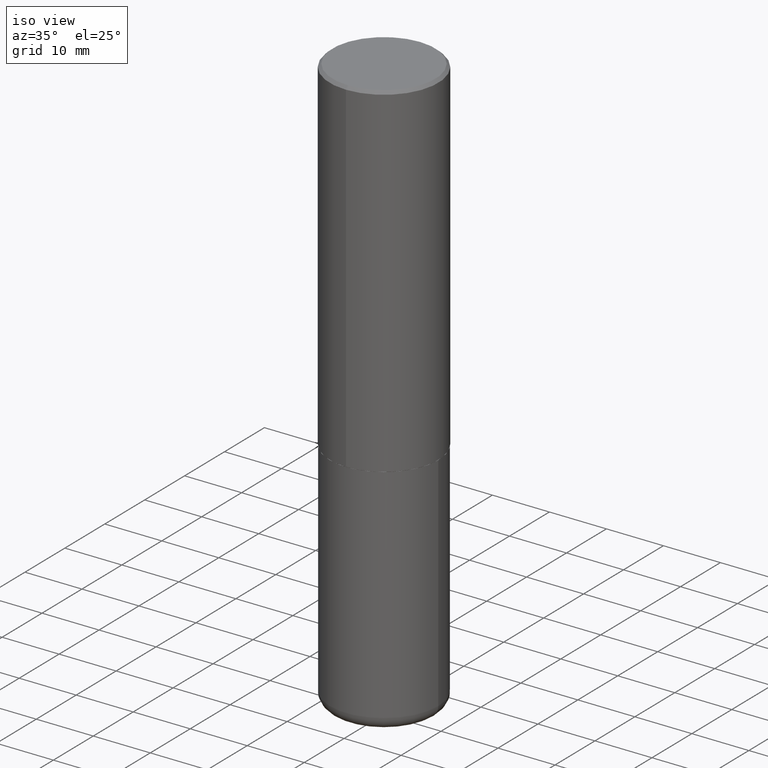
[diagram: clean part render]
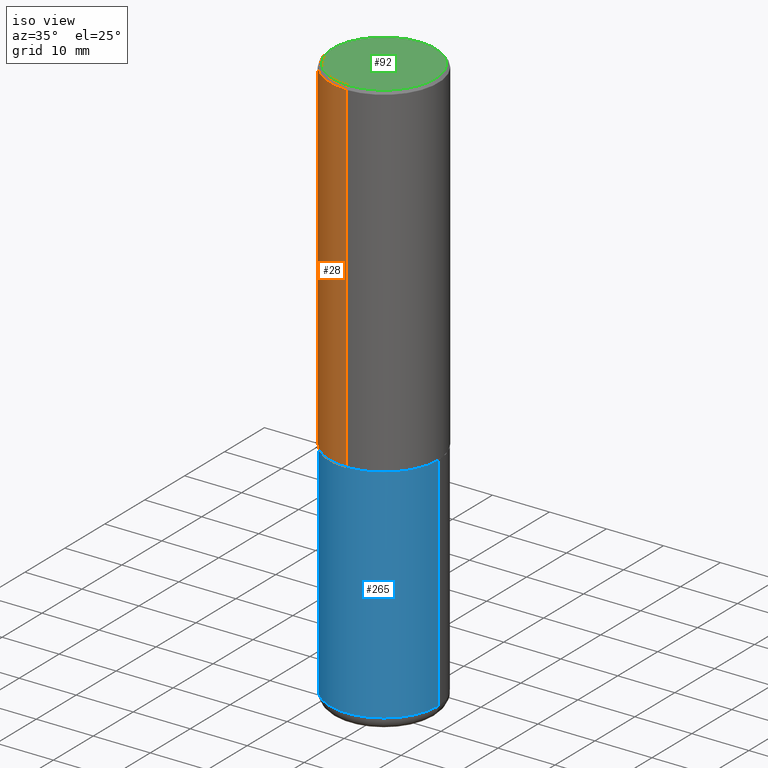
[diagram: same view with three faces highlighted in distinct colors, each labeled with its STEP entity id]
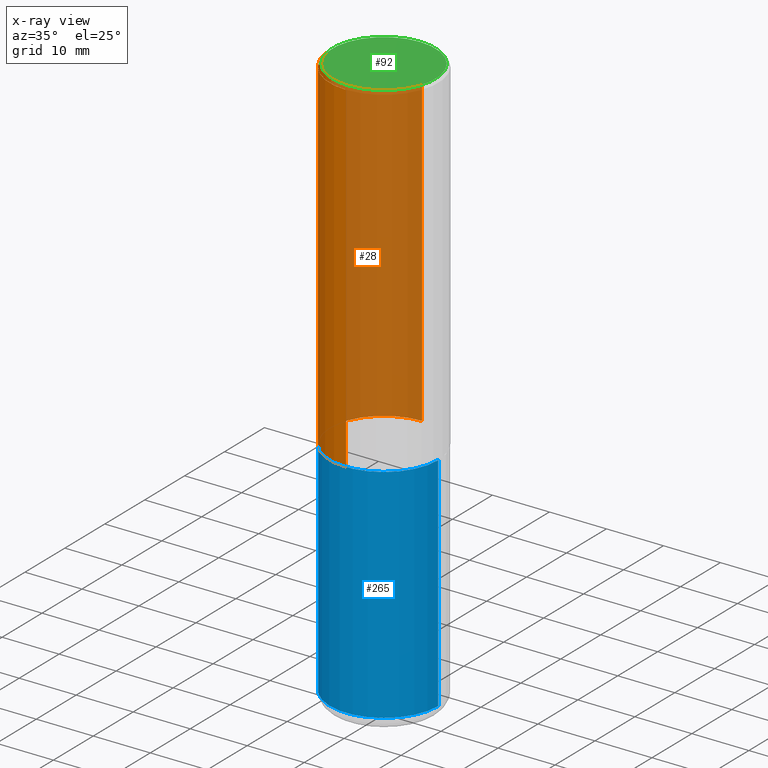
[diagram: x-ray of the same camera — body ghosted, the three highlighted faces saturated]
A machine part, iso view with three faces highlighted in distinct colors.
The next image is the same camera in x-ray (body ghosted, the three faces saturated) — at least one of them is partly hidden behind the body in this view.
Their STEP definitions:

[orange] entity #28 — the highlighted cylindrical surface (partial cylindrical patch) has radius 9.525 mm, axis along (-0, 0, 1).
#1 = CARTESIAN_POINT ( 'NONE',  ( -2.618611004132351200E-15, -0.3750000000000001665, 1.309785868171475725E-15 ) ) ;
#7 = DIRECTION ( 'NONE',  ( -6.982962677686265922E-15, -1.000000000000000000, 3.494488891895536035E-15 ) ) ;
#28 = ADVANCED_FACE ( 'NONE', ( #217 ), #349, .T. ) ;
#33 = CARTESIAN_POINT ( 'NONE',  ( 5.803419400614030161E-29, -8.291817736104219412E-15, -2.373999999999999666 ) ) ;
#37 = AXIS2_PLACEMENT_3D ( 'NONE', #33, #102, #363 ) ;
#39 = DIRECTION ( 'NONE',  ( -2.444574305229161733E-29, 3.492762315123933951E-15, 1.000000000000000000 ) ) ;
#45 = CARTESIAN_POINT ( 'NONE',  ( -2.572686749164323547E-15, -0.3750000000000001110, -0.01999999999999879652 ) ) ;
#51 = ORIENTED_EDGE ( 'NONE', *, *, #416, .F. ) ;
#74 = CARTESIAN_POINT ( 'NONE',  ( 2.664535259100406068E-15, 0.3749999999999920619, -2.374000000000001442 ) ) ;
#75 = ORIENTED_EDGE ( 'NONE', *, *, #174, .T. ) ;
#86 = ORIENTED_EDGE ( 'NONE', *, *, #132, .F. ) ;
#98 = ORIENTED_EDGE ( 'NONE', *, *, #208, .T. ) ;
#102 = DIRECTION ( 'NONE',  ( -2.444574305229161733E-29, 3.492762315123933951E-15, 1.000000000000000000 ) ) ;
#104 = CARTESIAN_POINT ( 'NONE',  ( 2.618611004132350411E-15, 0.3749999999999999445, -0.02000000000000141595 ) ) ;
#117 = CARTESIAN_POINT ( 'NONE',  ( -2.618611004132293613E-15, -0.3750000000000085487, -2.373999999999998334 ) ) ;
#131 = DIRECTION ( 'NONE',  ( -2.444574305229161733E-29, 3.492762315123933951E-15, 1.000000000000000000 ) ) ;
#132 = EDGE_CURVE ( 'NONE', #215, #385, #168, .T. ) ;
#133 = CARTESIAN_POINT ( 'NONE',  ( 4.889148610458350090E-31, -6.985524630247905373E-17, -0.02000000000000010797 ) ) ;
#150 = DIRECTION ( 'NONE',  ( -2.444574305229161733E-29, 3.492762315123933951E-15, 1.000000000000000000 ) ) ;
#166 = LINE ( 'NONE', #1, #282 ) ;
#168 = CIRCLE ( 'NONE', #365, 0.3750000000000000555 ) ;
#174 = EDGE_CURVE ( 'NONE', #279, #244, #409, .T. ) ;
#178 = CARTESIAN_POINT ( 'NONE',  ( 2.664535259100376486E-15, 0.3750000000000001665, -1.309785868171475725E-15 ) ) ;
#187 = CARTESIAN_POINT ( 'NONE',  ( 0.000000000000000000, 0.000000000000000000, 0.000000000000000000 ) ) ;
#191 = EDGE_LOOP ( 'NONE', ( #51, #75, #98, #86 ) ) ;
#207 = LINE ( 'NONE', #178, #308 ) ;
#208 = EDGE_CURVE ( 'NONE', #244, #385, #166, .T. ) ;
#215 = VERTEX_POINT ( 'NONE', #104 ) ;
#217 = FACE_OUTER_BOUND ( 'NONE', #191, .T. ) ;
#244 = VERTEX_POINT ( 'NONE', #117 ) ;
#279 = VERTEX_POINT ( 'NONE', #74 ) ;
#282 = VECTOR ( 'NONE', #131, 39.37007874015748143 ) ;
#287 = DIRECTION ( 'NONE',  ( -6.982962677686266711E-15, -1.000000000000000000, 3.492762315123933556E-15 ) ) ;
#308 = VECTOR ( 'NONE', #150, 39.37007874015748143 ) ;
#323 = DIRECTION ( 'NONE',  ( -2.444574305229161733E-29, 3.492762315123933951E-15, 1.000000000000000000 ) ) ;
#349 = CYLINDRICAL_SURFACE ( 'NONE', #364, 0.3750000000000001665 ) ;
#363 = DIRECTION ( 'NONE',  ( -6.982962677686266711E-15, -1.000000000000000000, 3.642463991552348591E-15 ) ) ;
#364 = AXIS2_PLACEMENT_3D ( 'NONE', #187, #323, #287 ) ;
#365 = AXIS2_PLACEMENT_3D ( 'NONE', #133, #39, #7 ) ;
#385 = VERTEX_POINT ( 'NONE', #45 ) ;
#409 = CIRCLE ( 'NONE', #37, 0.3750000000000002776 ) ;
#416 = EDGE_CURVE ( 'NONE', #279, #215, #207, .T. ) ;

[blue] entity #265 — the highlighted cylindrical surface (partial cylindrical patch) has radius 9.525 mm, axis along (-0, 0, 1).
#11 = DIRECTION ( 'NONE',  ( 1.000000000000000000, -6.982962677686266711E-15, 0.000000000000000000 ) ) ;
#12 = CARTESIAN_POINT ( 'NONE',  ( -0.3749999999999999445, -1.098715677577632652E-14, -3.910000000000000142 ) ) ;
#20 = DIRECTION ( 'NONE',  ( 1.000000000000000000, -6.982962677686266711E-15, 4.876176775795935793E-29 ) ) ;
#46 = EDGE_LOOP ( 'NONE', ( #161, #399, #275, #325 ) ) ;
#70 = AXIS2_PLACEMENT_3D ( 'NONE', #171, #301, #11 ) ;
#76 = EDGE_CURVE ( 'NONE', #346, #224, #360, .T. ) ;
#78 = DIRECTION ( 'NONE',  ( -2.445468806185136597E-29, 3.491481338843145583E-15, 1.000000000000000000 ) ) ;
#101 = AXIS2_PLACEMENT_3D ( 'NONE', #243, #376, #335 ) ;
#115 = CARTESIAN_POINT ( 'NONE',  ( 0.3750000000000000555, -1.091087918388482013E-14, -2.375000000000000000 ) ) ;
#127 = VERTEX_POINT ( 'NONE', #299 ) ;
#135 = CARTESIAN_POINT ( 'NONE',  ( 0.3749999999999999445, -2.618611004132349622E-15, 1.828566290923475642E-29 ) ) ;
#140 = CYLINDRICAL_SURFACE ( 'NONE', #317, 0.3749999999999999445 ) ;
#161 = ORIENTED_EDGE ( 'NONE', *, *, #76, .F. ) ;
#171 = CARTESIAN_POINT ( 'NONE',  ( 5.807988414689699417E-29, -8.292268179752470118E-15, -2.375000000000000000 ) ) ;
#213 = EDGE_CURVE ( 'NONE', #127, #377, #298, .T. ) ;
#224 = VERTEX_POINT ( 'NONE', #395 ) ;
#241 = FACE_OUTER_BOUND ( 'NONE', #46, .T. ) ;
#243 = CARTESIAN_POINT ( 'NONE',  ( 9.561783032183883600E-29, -1.365169203487670064E-14, -3.910000000000000142 ) ) ;
#261 = DIRECTION ( 'NONE',  ( -2.445468806185136877E-29, 3.491481338843145188E-15, 1.000000000000000000 ) ) ;
#265 = ADVANCED_FACE ( 'NONE', ( #241 ), #140, .T. ) ;
#267 = CIRCLE ( 'NONE', #101, 0.3749999999999999445 ) ;
#275 = ORIENTED_EDGE ( 'NONE', *, *, #213, .T. ) ;
#298 = LINE ( 'NONE', #135, #386 ) ;
#299 = CARTESIAN_POINT ( 'NONE',  ( 0.3749999999999999445, -1.627030303900904751E-14, -3.910000000000000142 ) ) ;
#301 = DIRECTION ( 'NONE',  ( -2.445468806185136597E-29, 3.491481338843145583E-15, 1.000000000000000000 ) ) ;
#315 = EDGE_CURVE ( 'NONE', #346, #127, #267, .T. ) ;
#317 = AXIS2_PLACEMENT_3D ( 'NONE', #375, #78, #20 ) ;
#318 = VECTOR ( 'NONE', #367, 39.37007874015748143 ) ;
#325 = ORIENTED_EDGE ( 'NONE', *, *, #347, .F. ) ;
#329 = CARTESIAN_POINT ( 'NONE',  ( -0.3749999999999999445, 2.664535259100375303E-15, -1.844600658845589318E-29 ) ) ;
#335 = DIRECTION ( 'NONE',  ( 1.000000000000000000, -6.982962677686263555E-15, 0.000000000000000000 ) ) ;
#340 = CIRCLE ( 'NONE', #70, 0.3750000000000000555 ) ;
#346 = VERTEX_POINT ( 'NONE', #12 ) ;
#347 = EDGE_CURVE ( 'NONE', #224, #377, #340, .T. ) ;
#360 = LINE ( 'NONE', #329, #318 ) ;
#367 = DIRECTION ( 'NONE',  ( -2.445468806185136877E-29, 3.491481338843145188E-15, 1.000000000000000000 ) ) ;
#375 = CARTESIAN_POINT ( 'NONE',  ( 0.000000000000000000, 0.000000000000000000, 0.000000000000000000 ) ) ;
#376 = DIRECTION ( 'NONE',  ( -2.445468806185136597E-29, 3.491481338843145583E-15, 1.000000000000000000 ) ) ;
#377 = VERTEX_POINT ( 'NONE', #115 ) ;
#386 = VECTOR ( 'NONE', #261, 39.37007874015748143 ) ;
#395 = CARTESIAN_POINT ( 'NONE',  ( -0.3750000000000000555, -8.307444848214210473E-15, -2.375000000000000000 ) ) ;
#399 = ORIENTED_EDGE ( 'NONE', *, *, #315, .T. ) ;

[green] entity #92 — the highlighted planar face has unit normal (0, -0, -1).
#6 = CARTESIAN_POINT ( 'NONE',  ( 2.478951750578623026E-15, 0.3549999999999997602, -1.105245105140992969E-15 ) ) ;
#21 = VERTEX_POINT ( 'NONE', #407 ) ;
#54 = VERTEX_POINT ( 'NONE', #290 ) ;
#67 = DIRECTION ( 'NONE',  ( 6.982962677686265922E-15, 1.000000000000000000, -3.492762315123933951E-15 ) ) ;
#92 = ADVANCED_FACE ( 'NONE', ( #105 ), #100, .F. ) ;
#100 = PLANE ( 'NONE',  #252 ) ;
#105 = FACE_OUTER_BOUND ( 'NONE', #249, .T. ) ;
#106 = CIRCLE ( 'NONE', #358, 0.3549999999999997602 ) ;
#118 = DIRECTION ( 'NONE',  ( -2.444574305229161733E-29, 3.492762315123933951E-15, 1.000000000000000000 ) ) ;
#141 = EDGE_CURVE ( 'NONE', #54, #21, #402, .T. ) ;
#144 = CARTESIAN_POINT ( 'NONE',  ( -6.584975069595768119E-45, 9.408489944411256093E-31, 2.693710334560058270E-16 ) ) ;
#145 = ORIENTED_EDGE ( 'NONE', *, *, #141, .T. ) ;
#170 = DIRECTION ( 'NONE',  ( -6.982962677686266711E-15, -1.000000000000000000, 3.492762315123933556E-15 ) ) ;
#197 = DIRECTION ( 'NONE',  ( 2.444574305229161733E-29, -3.492762315123933951E-15, -1.000000000000000000 ) ) ;
#229 = CARTESIAN_POINT ( 'NONE',  ( -6.584975069595768119E-45, 9.408489944411256093E-31, 2.693710334560058270E-16 ) ) ;
#230 = DIRECTION ( 'NONE',  ( -2.444574305229161733E-29, 3.492762315123933951E-15, 1.000000000000000000 ) ) ;
#249 = EDGE_LOOP ( 'NONE', ( #384, #145 ) ) ;
#252 = AXIS2_PLACEMENT_3D ( 'NONE', #6, #197, #67 ) ;
#269 = DIRECTION ( 'NONE',  ( -6.982962677686266711E-15, -1.000000000000000000, 3.492762315123933556E-15 ) ) ;
#290 = CARTESIAN_POINT ( 'NONE',  ( -2.504081769186607821E-15, -0.3549999999999997602, 1.509301655325001413E-15 ) ) ;
#311 = EDGE_CURVE ( 'NONE', #21, #54, #106, .T. ) ;
#350 = AXIS2_PLACEMENT_3D ( 'NONE', #229, #230, #170 ) ;
#358 = AXIS2_PLACEMENT_3D ( 'NONE', #144, #118, #269 ) ;
#384 = ORIENTED_EDGE ( 'NONE', *, *, #311, .T. ) ;
#402 = CIRCLE ( 'NONE', #350, 0.3549999999999997602 ) ;
#407 = CARTESIAN_POINT ( 'NONE',  ( 2.548781377355486718E-15, 0.3549999999999997602, -9.705595884129897592E-16 ) ) ;